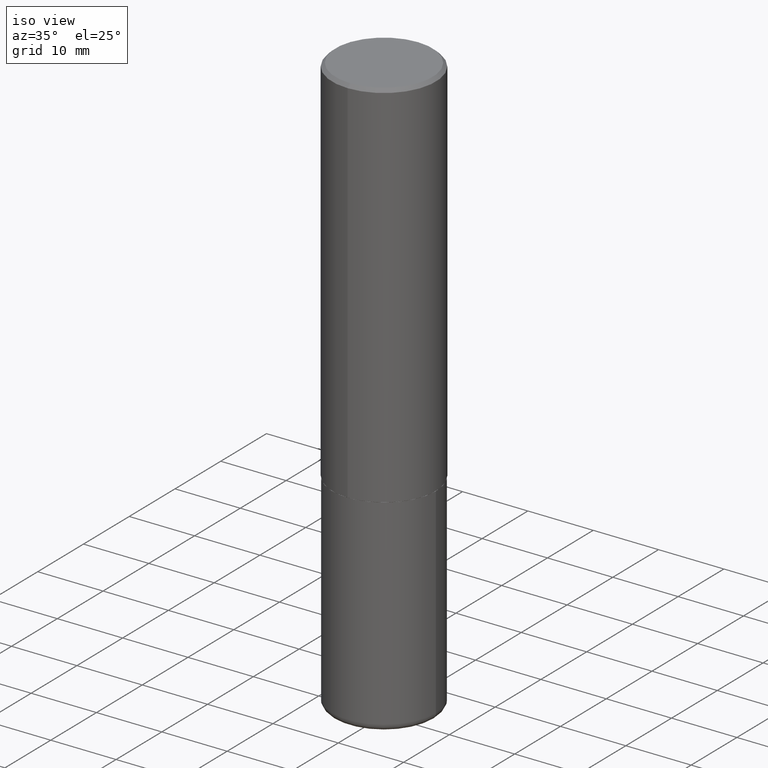
[diagram: clean part render]
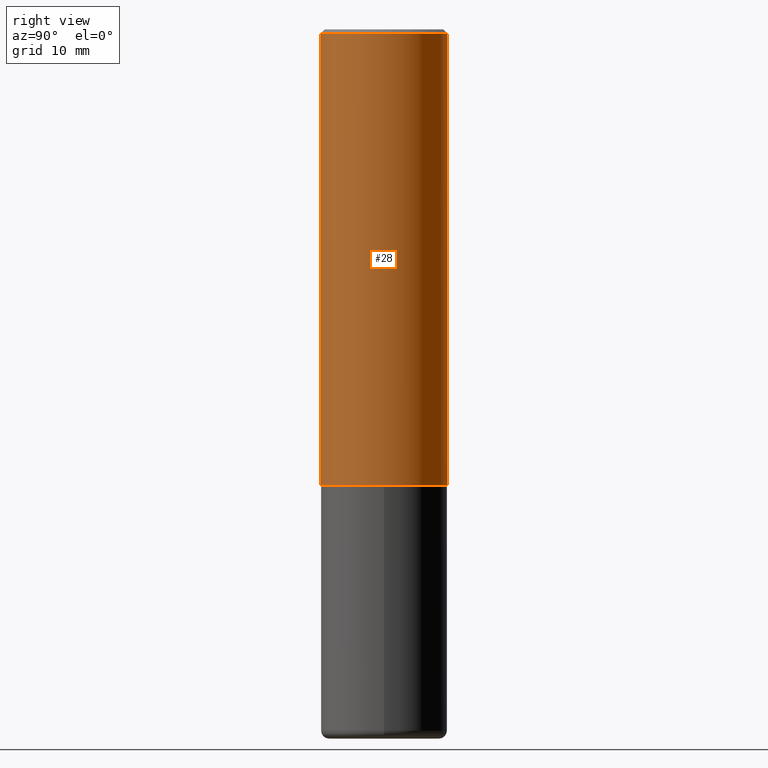
[diagram: tour spotlight — one face highlighted and labeled with its STEP entity id]
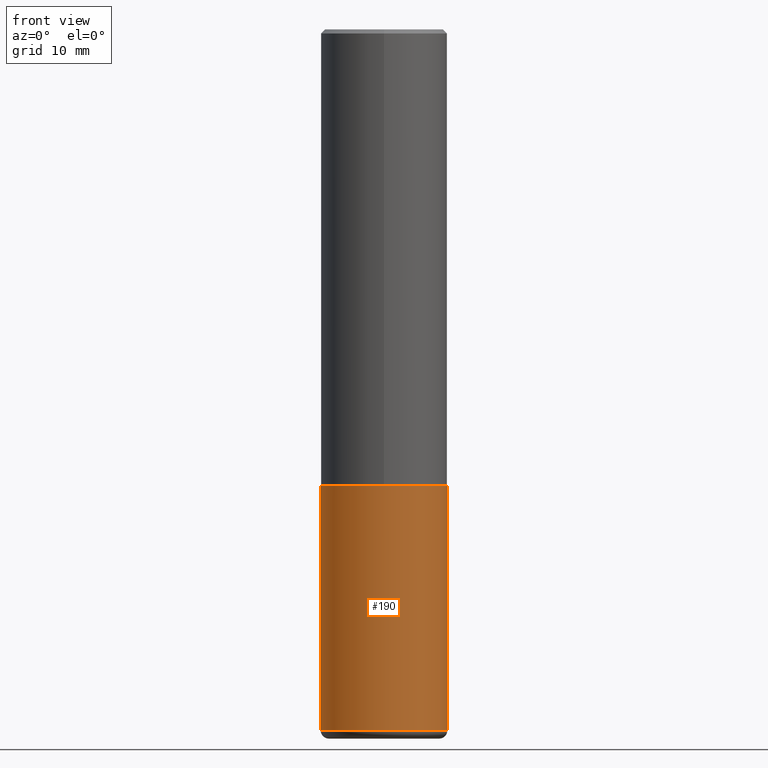
[diagram: tour spotlight — one face highlighted and labeled with its STEP entity id]
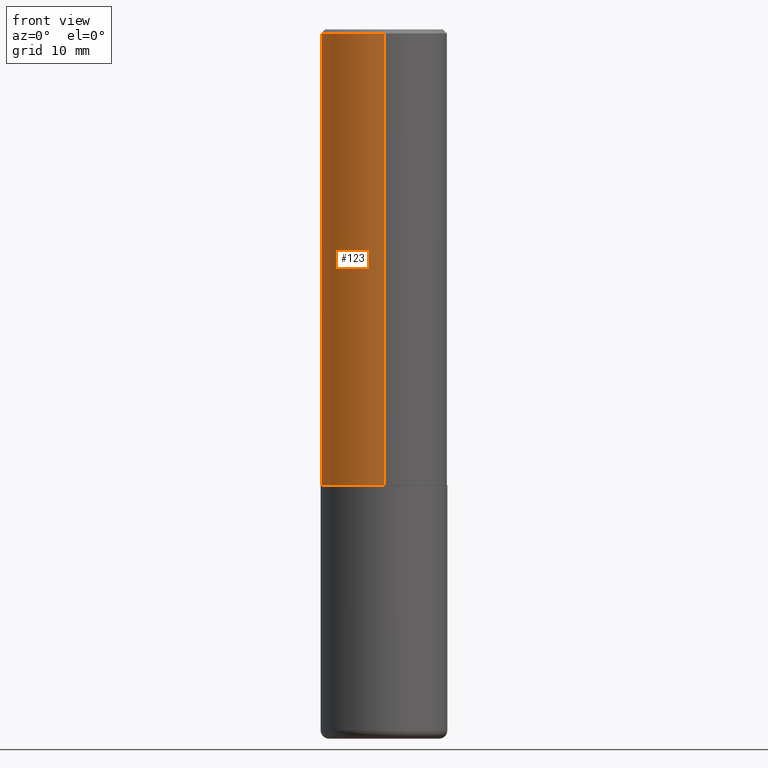
[diagram: tour spotlight — one face highlighted and labeled with its STEP entity id]
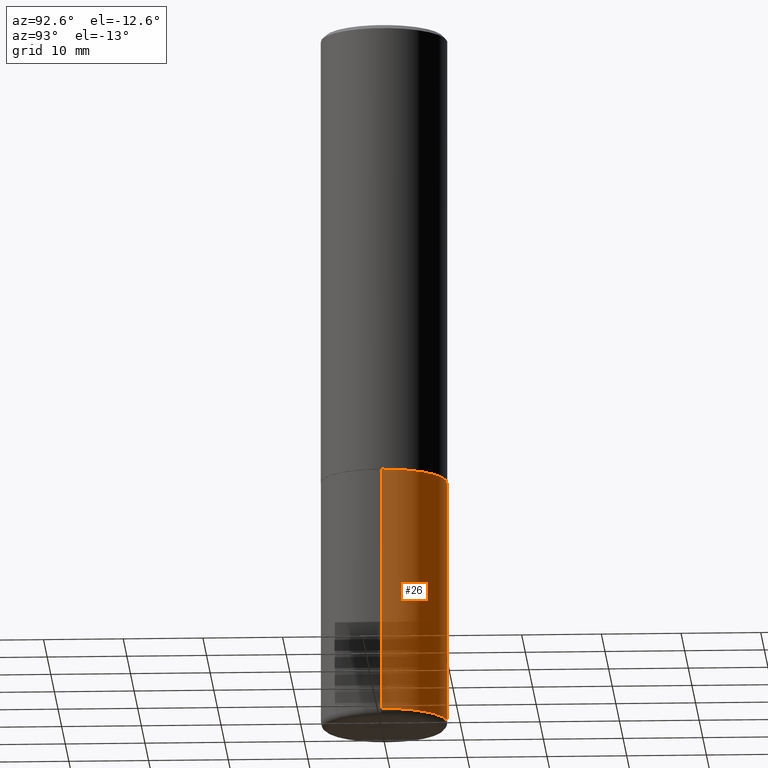
[diagram: tour spotlight — one face highlighted and labeled with its STEP entity id]
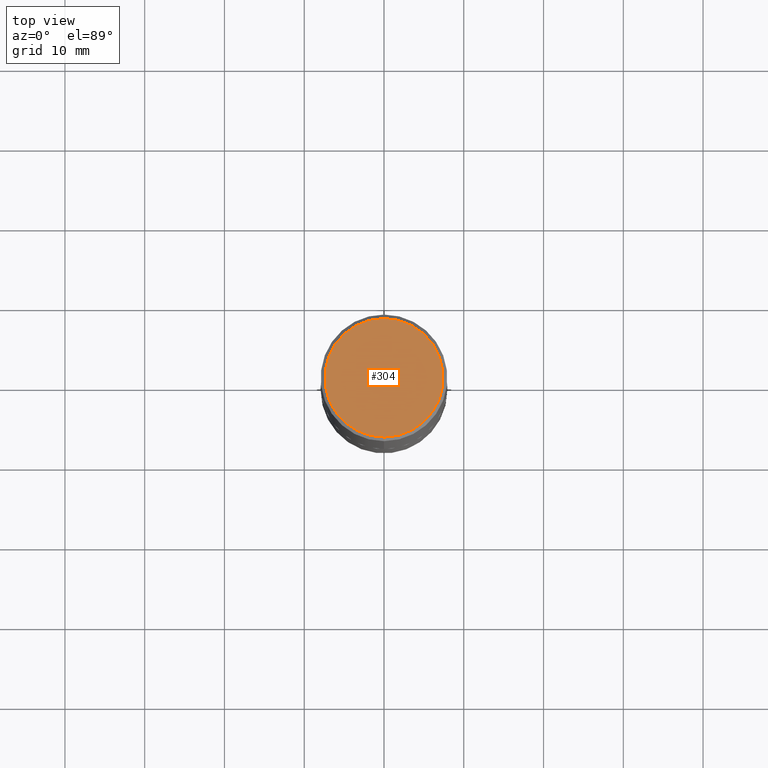
[diagram: tour spotlight — one face highlighted and labeled with its STEP entity id]
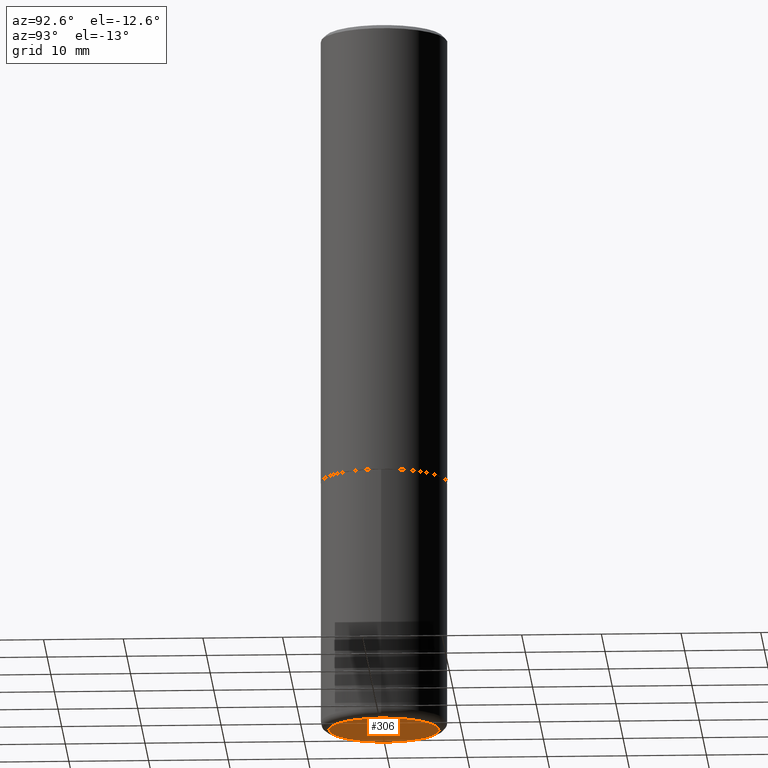
[diagram: tour spotlight — one face highlighted and labeled with its STEP entity id]
A machine part: a face-by-face anatomy tour. The part has 14 B-rep faces; the first image is the clean iso view, then the 6 largest visible faces are spotlighted one at a time (largest first), each with its STEP entity span.

Face 1 — right view, entity #28. In plain terms, the highlighted cylindrical surface (partial cylindrical patch) has radius 7.9375 mm, axis along (-0, 0, 1).
Definition (entity closure, byte-faithful):
#11 = CARTESIAN_POINT ( 'NONE',  ( -2.182175836776905099E-15, -0.3125000000000081601, -2.248999999999998778 ) ) ;
#13 = DIRECTION ( 'NONE',  ( -6.982962677686265133E-15, -1.000000000000000000, 3.496765431890254947E-15 ) ) ;
#25 = ORIENTED_EDGE ( 'NONE', *, *, #217, .F. ) ;
#28 = ADVANCED_FACE ( 'NONE', ( #128 ), #92, .T. ) ;
#43 = DIRECTION ( 'NONE',  ( -2.445831856911549473E-29, 3.490961429539358055E-15, 1.000000000000000000 ) ) ;
#92 = CYLINDRICAL_SURFACE ( 'NONE', #324, 0.3125000000000002220 ) ;
#95 = CARTESIAN_POINT ( 'NONE',  ( 5.500675846194074304E-29, -7.851172255034016199E-15, -2.248999999999999666 ) ) ;
#99 = AXIS2_PLACEMENT_3D ( 'NONE', #328, #43, #13 ) ;
#101 = CARTESIAN_POINT ( 'NONE',  ( 2.182175836776959530E-15, 0.3125000000000000555, -0.02000000000000116615 ) ) ;
#104 = EDGE_CURVE ( 'NONE', #266, #268, #183, .T. ) ;
#112 = DIRECTION ( 'NONE',  ( -2.445831856911549473E-29, 3.490961429539357661E-15, 1.000000000000000000 ) ) ;
#124 = DIRECTION ( 'NONE',  ( -2.445831856911549473E-29, 3.490961429539358055E-15, 1.000000000000000000 ) ) ;
#128 = FACE_OUTER_BOUND ( 'NONE', #327, .T. ) ;
#134 = AXIS2_PLACEMENT_3D ( 'NONE', #95, #124, #258 ) ;
#138 = CARTESIAN_POINT ( 'NONE',  ( 2.220446049250342269E-15, 0.3124999999999924505, -2.249000000000000998 ) ) ;
#147 = LINE ( 'NONE', #284, #275 ) ;
#165 = EDGE_CURVE ( 'NONE', #243, #168, #313, .T. ) ;
#168 = VERTEX_POINT ( 'NONE', #101 ) ;
#170 = ORIENTED_EDGE ( 'NONE', *, *, #104, .T. ) ;
#183 = CIRCLE ( 'NONE', #134, 0.3125000000000002776 ) ;
#196 = DIRECTION ( 'NONE',  ( -2.445831856911549473E-29, 3.490961429539357661E-15, 1.000000000000000000 ) ) ;
#197 = DIRECTION ( 'NONE',  ( -6.982962677686265922E-15, -1.000000000000000000, 3.490961429539358055E-15 ) ) ;
#217 = EDGE_CURVE ( 'NONE', #266, #243, #247, .T. ) ;
#243 = VERTEX_POINT ( 'NONE', #300 ) ;
#247 = LINE ( 'NONE', #294, #371 ) ;
#257 = CARTESIAN_POINT ( 'NONE',  ( 0.000000000000000000, 0.000000000000000000, 0.000000000000000000 ) ) ;
#258 = DIRECTION ( 'NONE',  ( -6.982962677686265922E-15, -1.000000000000000000, 3.496765431890253764E-15 ) ) ;
#266 = VERTEX_POINT ( 'NONE', #11 ) ;
#268 = VERTEX_POINT ( 'NONE', #138 ) ;
#275 = VECTOR ( 'NONE', #196, 39.37007874015748143 ) ;
#284 = CARTESIAN_POINT ( 'NONE',  ( 2.220446049250314264E-15, 0.3125000000000002220, -1.090925446731050132E-15 ) ) ;
#294 = CARTESIAN_POINT ( 'NONE',  ( -2.182175836776959530E-15, -0.3125000000000002220, 1.090925446731050132E-15 ) ) ;
#300 = CARTESIAN_POINT ( 'NONE',  ( -2.143905624303604008E-15, -0.3125000000000002220, -0.01999999999999898040 ) ) ;
#301 = ORIENTED_EDGE ( 'NONE', *, *, #339, .T. ) ;
#313 = CIRCLE ( 'NONE', #99, 0.3125000000000001665 ) ;
#324 = AXIS2_PLACEMENT_3D ( 'NONE', #257, #351, #197 ) ;
#327 = EDGE_LOOP ( 'NONE', ( #170, #301, #368, #25 ) ) ;
#328 = CARTESIAN_POINT ( 'NONE',  ( 4.891663713823116602E-31, -6.981922859078740516E-17, -0.02000000000000007327 ) ) ;
#339 = EDGE_CURVE ( 'NONE', #268, #168, #147, .T. ) ;
#351 = DIRECTION ( 'NONE',  ( -2.445831856911549473E-29, 3.490961429539358055E-15, 1.000000000000000000 ) ) ;
#368 = ORIENTED_EDGE ( 'NONE', *, *, #165, .F. ) ;
#371 = VECTOR ( 'NONE', #112, 39.37007874015748143 ) ;

Face 2 — front view, entity #190. In plain terms, the highlighted cylindrical surface (partial cylindrical patch) has radius 7.9375 mm, axis along (-0, 0, 1).
Definition (entity closure, byte-faithful):
#4 = DIRECTION ( 'NONE',  ( -2.445468806185136597E-29, 3.491481338843145583E-15, 1.000000000000000000 ) ) ;
#10 = VERTEX_POINT ( 'NONE', #384 ) ;
#20 = DIRECTION ( 'NONE',  ( 1.000000000000000000, -6.982962677686264344E-15, 0.000000000000000000 ) ) ;
#38 = DIRECTION ( 'NONE',  ( -2.445468806185136877E-29, 3.491481338843145188E-15, 1.000000000000000000 ) ) ;
#53 = CARTESIAN_POINT ( 'NONE',  ( 8.461322069400571907E-29, -1.208052543239728275E-14, -3.459999999999999520 ) ) ;
#58 = CARTESIAN_POINT ( 'NONE',  ( 0.3125000000000000000, -1.003800884917403522E-14, -2.249999999999999556 ) ) ;
#60 = VERTEX_POINT ( 'NONE', #203 ) ;
#82 = AXIS2_PLACEMENT_3D ( 'NONE', #109, #143, #210 ) ;
#86 = CARTESIAN_POINT ( 'NONE',  ( 0.3125000000000001665, -1.426270126917424109E-14, -3.459999999999999520 ) ) ;
#87 = EDGE_CURVE ( 'NONE', #60, #333, #152, .T. ) ;
#93 = EDGE_CURVE ( 'NONE', #359, #333, #321, .T. ) ;
#109 = CARTESIAN_POINT ( 'NONE',  ( 0.000000000000000000, 0.000000000000000000, 0.000000000000000000 ) ) ;
#122 = CARTESIAN_POINT ( 'NONE',  ( 0.3125000000000000000, -2.182175836776958347E-15, 1.523805242436230075E-29 ) ) ;
#131 = ORIENTED_EDGE ( 'NONE', *, *, #87, .F. ) ;
#132 = CARTESIAN_POINT ( 'NONE',  ( -0.3125000000000000000, 2.220446049250313081E-15, -1.537167215704658232E-29 ) ) ;
#136 = LINE ( 'NONE', #132, #223 ) ;
#137 = ORIENTED_EDGE ( 'NONE', *, *, #93, .T. ) ;
#143 = DIRECTION ( 'NONE',  ( -2.445468806185136597E-29, 3.491481338843145583E-15, 1.000000000000000000 ) ) ;
#145 = EDGE_CURVE ( 'NONE', #10, #60, #136, .T. ) ;
#152 = CIRCLE ( 'NONE', #383, 0.3125000000000000000 ) ;
#158 = CIRCLE ( 'NONE', #256, 0.3124999999999999445 ) ;
#190 = ADVANCED_FACE ( 'NONE', ( #267 ), #273, .T. ) ;
#201 = EDGE_LOOP ( 'NONE', ( #241, #329, #137, #131 ) ) ;
#203 = CARTESIAN_POINT ( 'NONE',  ( -0.3125000000000000000, -7.747733173146866727E-15, -2.249999999999999556 ) ) ;
#210 = DIRECTION ( 'NONE',  ( 1.000000000000000000, -6.982962677686266711E-15, 4.876176775795936353E-29 ) ) ;
#223 = VECTOR ( 'NONE', #38, 39.37007874015748143 ) ;
#241 = ORIENTED_EDGE ( 'NONE', *, *, #145, .F. ) ;
#256 = AXIS2_PLACEMENT_3D ( 'NONE', #53, #373, #20 ) ;
#263 = CARTESIAN_POINT ( 'NONE',  ( 5.502304813916556222E-29, -7.855833012397076871E-15, -2.249999999999999556 ) ) ;
#267 = FACE_OUTER_BOUND ( 'NONE', #201, .T. ) ;
#273 = CYLINDRICAL_SURFACE ( 'NONE', #82, 0.3125000000000000000 ) ;
#288 = DIRECTION ( 'NONE',  ( 1.000000000000000000, -6.982962677686269077E-15, 0.000000000000000000 ) ) ;
#321 = LINE ( 'NONE', #122, #414 ) ;
#329 = ORIENTED_EDGE ( 'NONE', *, *, #389, .T. ) ;
#333 = VERTEX_POINT ( 'NONE', #58 ) ;
#359 = VERTEX_POINT ( 'NONE', #86 ) ;
#373 = DIRECTION ( 'NONE',  ( -2.445468806185136597E-29, 3.491481338843145583E-15, 1.000000000000000000 ) ) ;
#383 = AXIS2_PLACEMENT_3D ( 'NONE', #263, #4, #288 ) ;
#384 = CARTESIAN_POINT ( 'NONE',  ( -0.3125000000000001665, -9.860079383146966509E-15, -3.459999999999999520 ) ) ;
#389 = EDGE_CURVE ( 'NONE', #10, #359, #158, .T. ) ;
#414 = VECTOR ( 'NONE', #417, 39.37007874015748143 ) ;
#417 = DIRECTION ( 'NONE',  ( -2.445468806185136877E-29, 3.491481338843145188E-15, 1.000000000000000000 ) ) ;

Face 3 — front view, entity #123. In plain terms, the highlighted cylindrical surface (partial cylindrical patch) has radius 7.9375 mm, axis along (-0, 0, 1).
Definition (entity closure, byte-faithful):
#11 = CARTESIAN_POINT ( 'NONE',  ( -2.182175836776905099E-15, -0.3125000000000081601, -2.248999999999998778 ) ) ;
#16 = EDGE_CURVE ( 'NONE', #168, #243, #219, .T. ) ;
#29 = CARTESIAN_POINT ( 'NONE',  ( 4.891663713823116602E-31, -6.981922859078740516E-17, -0.02000000000000007327 ) ) ;
#76 = DIRECTION ( 'NONE',  ( -6.982962677686265922E-15, -1.000000000000000000, 3.490961429539358055E-15 ) ) ;
#98 = ORIENTED_EDGE ( 'NONE', *, *, #339, .F. ) ;
#101 = CARTESIAN_POINT ( 'NONE',  ( 2.182175836776959530E-15, 0.3125000000000000555, -0.02000000000000116615 ) ) ;
#112 = DIRECTION ( 'NONE',  ( -2.445831856911549473E-29, 3.490961429539357661E-15, 1.000000000000000000 ) ) ;
#123 = ADVANCED_FACE ( 'NONE', ( #332 ), #277, .T. ) ;
#138 = CARTESIAN_POINT ( 'NONE',  ( 2.220446049250342269E-15, 0.3124999999999924505, -2.249000000000000998 ) ) ;
#144 = CIRCLE ( 'NONE', #379, 0.3125000000000002776 ) ;
#147 = LINE ( 'NONE', #284, #275 ) ;
#155 = EDGE_CURVE ( 'NONE', #268, #266, #144, .T. ) ;
#164 = DIRECTION ( 'NONE',  ( -6.982962677686265133E-15, -1.000000000000000000, 3.496765431890254947E-15 ) ) ;
#168 = VERTEX_POINT ( 'NONE', #101 ) ;
#172 = ORIENTED_EDGE ( 'NONE', *, *, #16, .F. ) ;
#180 = CARTESIAN_POINT ( 'NONE',  ( 5.500675846194074304E-29, -7.851172255034016199E-15, -2.248999999999999666 ) ) ;
#196 = DIRECTION ( 'NONE',  ( -2.445831856911549473E-29, 3.490961429539357661E-15, 1.000000000000000000 ) ) ;
#214 = DIRECTION ( 'NONE',  ( -6.982962677686265922E-15, -1.000000000000000000, 3.496765431890253764E-15 ) ) ;
#217 = EDGE_CURVE ( 'NONE', #266, #243, #247, .T. ) ;
#219 = CIRCLE ( 'NONE', #261, 0.3125000000000001665 ) ;
#233 = EDGE_LOOP ( 'NONE', ( #98, #323, #397, #172 ) ) ;
#243 = VERTEX_POINT ( 'NONE', #300 ) ;
#247 = LINE ( 'NONE', #294, #371 ) ;
#261 = AXIS2_PLACEMENT_3D ( 'NONE', #29, #322, #164 ) ;
#266 = VERTEX_POINT ( 'NONE', #11 ) ;
#268 = VERTEX_POINT ( 'NONE', #138 ) ;
#275 = VECTOR ( 'NONE', #196, 39.37007874015748143 ) ;
#277 = CYLINDRICAL_SURFACE ( 'NONE', #318, 0.3125000000000002220 ) ;
#284 = CARTESIAN_POINT ( 'NONE',  ( 2.220446049250314264E-15, 0.3125000000000002220, -1.090925446731050132E-15 ) ) ;
#294 = CARTESIAN_POINT ( 'NONE',  ( -2.182175836776959530E-15, -0.3125000000000002220, 1.090925446731050132E-15 ) ) ;
#300 = CARTESIAN_POINT ( 'NONE',  ( -2.143905624303604008E-15, -0.3125000000000002220, -0.01999999999999898040 ) ) ;
#303 = DIRECTION ( 'NONE',  ( -2.445831856911549473E-29, 3.490961429539358055E-15, 1.000000000000000000 ) ) ;
#318 = AXIS2_PLACEMENT_3D ( 'NONE', #337, #336, #76 ) ;
#322 = DIRECTION ( 'NONE',  ( -2.445831856911549473E-29, 3.490961429539358055E-15, 1.000000000000000000 ) ) ;
#323 = ORIENTED_EDGE ( 'NONE', *, *, #155, .T. ) ;
#332 = FACE_OUTER_BOUND ( 'NONE', #233, .T. ) ;
#336 = DIRECTION ( 'NONE',  ( -2.445831856911549473E-29, 3.490961429539358055E-15, 1.000000000000000000 ) ) ;
#337 = CARTESIAN_POINT ( 'NONE',  ( 0.000000000000000000, 0.000000000000000000, 0.000000000000000000 ) ) ;
#339 = EDGE_CURVE ( 'NONE', #268, #168, #147, .T. ) ;
#371 = VECTOR ( 'NONE', #112, 39.37007874015748143 ) ;
#379 = AXIS2_PLACEMENT_3D ( 'NONE', #180, #303, #214 ) ;
#397 = ORIENTED_EDGE ( 'NONE', *, *, #217, .T. ) ;

Face 4 — auxiliary view, entity #26. In plain terms, the highlighted cylindrical surface (partial cylindrical patch) has radius 7.9375 mm, axis along (-0, 0, 1).
Definition (entity closure, byte-faithful):
#7 = ORIENTED_EDGE ( 'NONE', *, *, #93, .F. ) ;
#10 = VERTEX_POINT ( 'NONE', #384 ) ;
#26 = ADVANCED_FACE ( 'NONE', ( #381 ), #31, .T. ) ;
#31 = CYLINDRICAL_SURFACE ( 'NONE', #413, 0.3125000000000000000 ) ;
#38 = DIRECTION ( 'NONE',  ( -2.445468806185136877E-29, 3.491481338843145188E-15, 1.000000000000000000 ) ) ;
#42 = CARTESIAN_POINT ( 'NONE',  ( 5.502304813916556222E-29, -7.855833012397076871E-15, -2.249999999999999556 ) ) ;
#58 = CARTESIAN_POINT ( 'NONE',  ( 0.3125000000000000000, -1.003800884917403522E-14, -2.249999999999999556 ) ) ;
#60 = VERTEX_POINT ( 'NONE', #203 ) ;
#61 = AXIS2_PLACEMENT_3D ( 'NONE', #42, #369, #269 ) ;
#66 = EDGE_LOOP ( 'NONE', ( #74, #295, #107, #7 ) ) ;
#74 = ORIENTED_EDGE ( 'NONE', *, *, #224, .T. ) ;
#86 = CARTESIAN_POINT ( 'NONE',  ( 0.3125000000000001665, -1.426270126917424109E-14, -3.459999999999999520 ) ) ;
#91 = CARTESIAN_POINT ( 'NONE',  ( 0.000000000000000000, 0.000000000000000000, 0.000000000000000000 ) ) ;
#93 = EDGE_CURVE ( 'NONE', #359, #333, #321, .T. ) ;
#94 = AXIS2_PLACEMENT_3D ( 'NONE', #367, #239, #394 ) ;
#107 = ORIENTED_EDGE ( 'NONE', *, *, #151, .F. ) ;
#122 = CARTESIAN_POINT ( 'NONE',  ( 0.3125000000000000000, -2.182175836776958347E-15, 1.523805242436230075E-29 ) ) ;
#132 = CARTESIAN_POINT ( 'NONE',  ( -0.3125000000000000000, 2.220446049250313081E-15, -1.537167215704658232E-29 ) ) ;
#136 = LINE ( 'NONE', #132, #223 ) ;
#145 = EDGE_CURVE ( 'NONE', #10, #60, #136, .T. ) ;
#151 = EDGE_CURVE ( 'NONE', #333, #60, #177, .T. ) ;
#177 = CIRCLE ( 'NONE', #61, 0.3125000000000000000 ) ;
#203 = CARTESIAN_POINT ( 'NONE',  ( -0.3125000000000000000, -7.747733173146866727E-15, -2.249999999999999556 ) ) ;
#220 = CIRCLE ( 'NONE', #94, 0.3124999999999999445 ) ;
#223 = VECTOR ( 'NONE', #38, 39.37007874015748143 ) ;
#224 = EDGE_CURVE ( 'NONE', #359, #10, #220, .T. ) ;
#239 = DIRECTION ( 'NONE',  ( -2.445468806185136597E-29, 3.491481338843145583E-15, 1.000000000000000000 ) ) ;
#269 = DIRECTION ( 'NONE',  ( 1.000000000000000000, -6.982962677686269077E-15, 0.000000000000000000 ) ) ;
#292 = DIRECTION ( 'NONE',  ( 1.000000000000000000, -6.982962677686266711E-15, 4.876176775795936353E-29 ) ) ;
#295 = ORIENTED_EDGE ( 'NONE', *, *, #145, .T. ) ;
#321 = LINE ( 'NONE', #122, #414 ) ;
#333 = VERTEX_POINT ( 'NONE', #58 ) ;
#356 = DIRECTION ( 'NONE',  ( -2.445468806185136597E-29, 3.491481338843145583E-15, 1.000000000000000000 ) ) ;
#359 = VERTEX_POINT ( 'NONE', #86 ) ;
#367 = CARTESIAN_POINT ( 'NONE',  ( 8.461322069400571907E-29, -1.208052543239728275E-14, -3.459999999999999520 ) ) ;
#369 = DIRECTION ( 'NONE',  ( -2.445468806185136597E-29, 3.491481338843145583E-15, 1.000000000000000000 ) ) ;
#381 = FACE_OUTER_BOUND ( 'NONE', #66, .T. ) ;
#384 = CARTESIAN_POINT ( 'NONE',  ( -0.3125000000000001665, -9.860079383146966509E-15, -3.459999999999999520 ) ) ;
#394 = DIRECTION ( 'NONE',  ( 1.000000000000000000, -6.982962677686264344E-15, 0.000000000000000000 ) ) ;
#413 = AXIS2_PLACEMENT_3D ( 'NONE', #91, #356, #292 ) ;
#414 = VECTOR ( 'NONE', #417, 39.37007874015748143 ) ;
#417 = DIRECTION ( 'NONE',  ( -2.445468806185136877E-29, 3.491481338843145188E-15, 1.000000000000000000 ) ) ;

Face 5 — top view, entity #304. In plain terms, the highlighted planar face has unit normal (0, -0, -1).
Definition (entity closure, byte-faithful):
#2 = DIRECTION ( 'NONE',  ( -6.982962677686265922E-15, -1.000000000000000000, 3.490961429539358450E-15 ) ) ;
#15 = DIRECTION ( 'NONE',  ( -2.445831856911549473E-29, 3.490961429539358055E-15, 1.000000000000000000 ) ) ;
#47 = PLANE ( 'NONE',  #110 ) ;
#68 = CARTESIAN_POINT ( 'NONE',  ( 3.135738610382111405E-45, -4.475672565563925240E-31, -1.282074481743702017E-16 ) ) ;
#78 = EDGE_CURVE ( 'NONE', #225, #298, #280, .T. ) ;
#80 = DIRECTION ( 'NONE',  ( 2.445831856911549473E-29, -3.490961429539357661E-15, -1.000000000000000000 ) ) ;
#102 = ORIENTED_EDGE ( 'NONE', *, *, #259, .T. ) ;
#106 = CARTESIAN_POINT ( 'NONE',  ( -2.075300644325889071E-15, -0.2925000000000002598, 8.928987699658930056E-16 ) ) ;
#110 = AXIS2_PLACEMENT_3D ( 'NONE', #188, #80, #406 ) ;
#156 = CARTESIAN_POINT ( 'NONE',  ( 3.135738610382111405E-45, -4.475672565563925240E-31, -1.282074481743702017E-16 ) ) ;
#185 = CIRCLE ( 'NONE', #227, 0.2925000000000002598 ) ;
#188 = CARTESIAN_POINT ( 'NONE',  ( 2.042516583223234512E-15, 0.2925000000000002598, -1.085209942227448111E-15 ) ) ;
#193 = FACE_OUTER_BOUND ( 'NONE', #387, .T. ) ;
#212 = AXIS2_PLACEMENT_3D ( 'NONE', #156, #415, #2 ) ;
#225 = VERTEX_POINT ( 'NONE', #363 ) ;
#227 = AXIS2_PLACEMENT_3D ( 'NONE', #68, #15, #396 ) ;
#259 = EDGE_CURVE ( 'NONE', #298, #225, #185, .T. ) ;
#272 = ORIENTED_EDGE ( 'NONE', *, *, #78, .T. ) ;
#280 = CIRCLE ( 'NONE', #212, 0.2925000000000002598 ) ;
#298 = VERTEX_POINT ( 'NONE', #106 ) ;
#304 = ADVANCED_FACE ( 'NONE', ( #193 ), #47, .F. ) ;
#363 = CARTESIAN_POINT ( 'NONE',  ( 2.112346210000097415E-15, 0.2925000000000002598, -1.149313666314633409E-15 ) ) ;
#387 = EDGE_LOOP ( 'NONE', ( #272, #102 ) ) ;
#396 = DIRECTION ( 'NONE',  ( -6.982962677686265922E-15, -1.000000000000000000, 3.490961429539358450E-15 ) ) ;
#406 = DIRECTION ( 'NONE',  ( 6.982962677686265922E-15, 1.000000000000000000, -3.490961429539357661E-15 ) ) ;
#415 = DIRECTION ( 'NONE',  ( -2.445831856911549473E-29, 3.490961429539358055E-15, 1.000000000000000000 ) ) ;

Face 6 — auxiliary view, entity #306. In plain terms, the highlighted planar face has unit normal (0, -0, -1).
Definition (entity closure, byte-faithful):
#5 = VERTEX_POINT ( 'NONE', #235 ) ;
#39 = CIRCLE ( 'NONE', #334, 0.2725000000000000200 ) ;
#41 = VERTEX_POINT ( 'NONE', #357 ) ;
#50 = DIRECTION ( 'NONE',  ( -1.000000000000000000, 6.982962677686265922E-15, -4.876176775795935793E-29 ) ) ;
#55 = PLANE ( 'NONE',  #237 ) ;
#85 = CARTESIAN_POINT ( 'NONE',  ( 8.559140821647978089E-29, -1.222018468595101092E-14, -3.500000000000000444 ) ) ;
#111 = EDGE_CURVE ( 'NONE', #41, #5, #116, .T. ) ;
#115 = DIRECTION ( 'NONE',  ( 2.438088387897960049E-29, -3.491481338843145188E-15, -1.000000000000000000 ) ) ;
#116 = CIRCLE ( 'NONE', #199, 0.2725000000000000200 ) ;
#125 = CARTESIAN_POINT ( 'NONE',  ( 8.559140821647978089E-29, -1.222018468595101092E-14, -3.500000000000000444 ) ) ;
#162 = EDGE_LOOP ( 'NONE', ( #418, #236 ) ) ;
#199 = AXIS2_PLACEMENT_3D ( 'NONE', #125, #260, #230 ) ;
#230 = DIRECTION ( 'NONE',  ( 1.000000000000000000, -6.982962677686266711E-15, 0.000000000000000000 ) ) ;
#235 = CARTESIAN_POINT ( 'NONE',  ( -0.2725000000000000200, -1.007201755707584997E-14, -3.500000000000000444 ) ) ;
#236 = ORIENTED_EDGE ( 'NONE', *, *, #376, .F. ) ;
#237 = AXIS2_PLACEMENT_3D ( 'NONE', #314, #115, #50 ) ;
#260 = DIRECTION ( 'NONE',  ( -2.445468806185136597E-29, 3.491481338843145583E-15, 1.000000000000000000 ) ) ;
#283 = DIRECTION ( 'NONE',  ( 1.000000000000000000, -6.982962677686266711E-15, 0.000000000000000000 ) ) ;
#306 = ADVANCED_FACE ( 'NONE', ( #312 ), #55, .T. ) ;
#312 = FACE_OUTER_BOUND ( 'NONE', #162, .T. ) ;
#314 = CARTESIAN_POINT ( 'NONE',  ( 3.658783094452102937E-29, -1.923777586233627620E-14, -3.500000000000000444 ) ) ;
#334 = AXIS2_PLACEMENT_3D ( 'NONE', #85, #349, #283 ) ;
#349 = DIRECTION ( 'NONE',  ( -2.445468806185136597E-29, 3.491481338843145583E-15, 1.000000000000000000 ) ) ;
#357 = CARTESIAN_POINT ( 'NONE',  ( 0.2725000000000000200, -1.412304201562051765E-14, -3.500000000000000444 ) ) ;
#376 = EDGE_CURVE ( 'NONE', #5, #41, #39, .T. ) ;
#418 = ORIENTED_EDGE ( 'NONE', *, *, #111, .F. ) ;